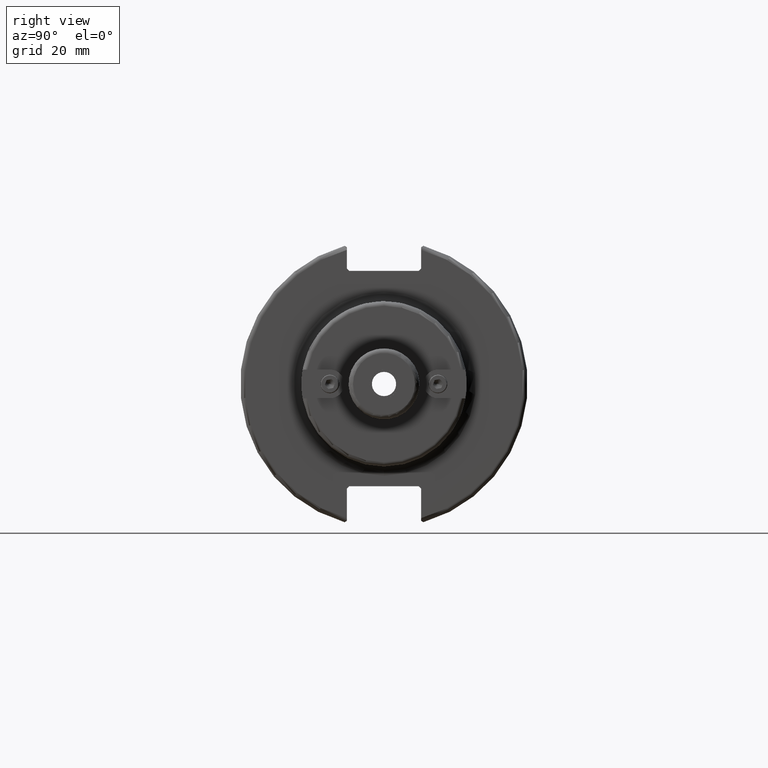
[diagram: clean part render]
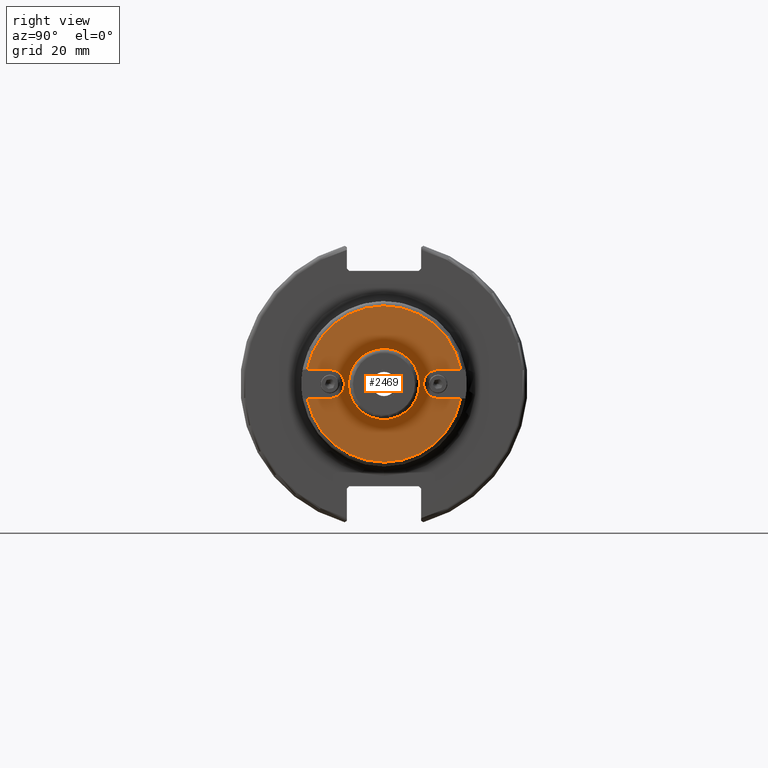
[diagram: same view with one face highlighted and labeled with its STEP entity id]
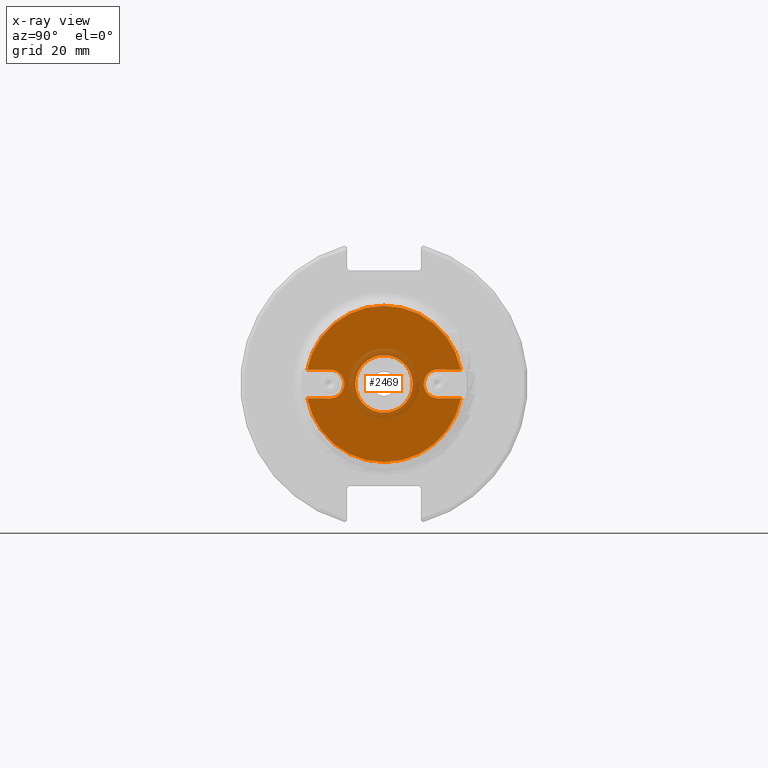
[diagram: x-ray of the same camera — body ghosted, the highlighted face saturated]
A machine part, right view. The second image highlights one B-rep face of the part: STEP entity #2469.
The next image is the same camera in x-ray: the body ghosted, the highlighted face saturated — about 9% of this face is hidden behind the body in this view.
In plain terms, the highlighted planar face has unit normal (1, 0, 0).
Its self-contained STEP definition (entity closure, byte-faithful):
#173=FACE_BOUND('',#494,.T.);
#198=CIRCLE('',#2708,3.175);
#204=CIRCLE('',#2717,17.265);
#205=CIRCLE('',#2719,17.265);
#209=CIRCLE('',#2729,3.175);
#220=CIRCLE('',#2746,6.35);
#341=FACE_OUTER_BOUND('',#493,.T.);
#493=EDGE_LOOP('',(#1735,#1736,#1737,#1738,#1739,#1740,#1741,#1742));
#494=EDGE_LOOP('',(#1743));
#639=LINE('',#3791,#809);
#648=LINE('',#3832,#818);
#654=LINE('',#3885,#824);
#659=LINE('',#3896,#829);
#809=VECTOR('',#3005,10.);
#818=VECTOR('',#3036,10.);
#824=VECTOR('',#3072,10.);
#829=VECTOR('',#3083,10.);
#1013=VERTEX_POINT('',#3778);
#1015=VERTEX_POINT('',#3790);
#1024=VERTEX_POINT('',#3815);
#1026=VERTEX_POINT('',#3820);
#1033=VERTEX_POINT('',#3849);
#1034=VERTEX_POINT('',#3862);
#1038=VERTEX_POINT('',#3884);
#1041=VERTEX_POINT('',#3894);
#1055=VERTEX_POINT('',#4003);
#1260=EDGE_CURVE('',#1015,#1013,#639,.T.);
#1272=EDGE_CURVE('',#1024,#1015,#198,.T.);
#1276=EDGE_CURVE('',#1026,#1024,#648,.T.);
#1285=EDGE_CURVE('',#1026,#1033,#204,.T.);
#1288=EDGE_CURVE('',#1034,#1013,#205,.T.);
#1293=EDGE_CURVE('',#1038,#1033,#654,.T.);
#1299=EDGE_CURVE('',#1034,#1041,#659,.T.);
#1300=EDGE_CURVE('',#1041,#1038,#209,.T.);
#1319=EDGE_CURVE('',#1055,#1055,#220,.T.);
#1735=ORIENTED_EDGE('',*,*,#1260,.T.);
#1736=ORIENTED_EDGE('',*,*,#1288,.F.);
#1737=ORIENTED_EDGE('',*,*,#1299,.T.);
#1738=ORIENTED_EDGE('',*,*,#1300,.T.);
#1739=ORIENTED_EDGE('',*,*,#1293,.T.);
#1740=ORIENTED_EDGE('',*,*,#1285,.F.);
#1741=ORIENTED_EDGE('',*,*,#1276,.T.);
#1742=ORIENTED_EDGE('',*,*,#1272,.T.);
#1743=ORIENTED_EDGE('',*,*,#1319,.F.);
#2382=PLANE('',#2747);
#2469=ADVANCED_FACE('',(#341,#173),#2382,.T.);
#2708=AXIS2_PLACEMENT_3D('',#3816,#3030,#3031);
#2717=AXIS2_PLACEMENT_3D('',#3850,#3054,#3055);
#2719=AXIS2_PLACEMENT_3D('',#3873,#3058,#3059);
#2729=AXIS2_PLACEMENT_3D('',#3898,#3086,#3087);
#2746=AXIS2_PLACEMENT_3D('',#4005,#3124,#3125);
#2747=AXIS2_PLACEMENT_3D('',#4006,#3126,#3127);
#3005=DIRECTION('',(0.,-1.,1.76228506773096E-16));
#3030=DIRECTION('center_axis',(-1.,0.,0.));
#3031=DIRECTION('ref_axis',(0.,-1.22464679914735E-16,-1.));
#3036=DIRECTION('',(0.,1.,-6.87008530563742E-17));
#3054=DIRECTION('center_axis',(-1.,0.,0.));
#3055=DIRECTION('ref_axis',(0.,-1.,1.83697019872103E-16));
#3058=DIRECTION('center_axis',(-1.,0.,0.));
#3059=DIRECTION('ref_axis',(0.,-1.,1.83697019872103E-16));
#3072=DIRECTION('',(0.,1.,-5.37638268583611E-17));
#3083=DIRECTION('',(0.,-1.,-5.37638268583611E-17));
#3086=DIRECTION('center_axis',(-1.,0.,0.));
#3087=DIRECTION('ref_axis',(0.,0.,1.));
#3124=DIRECTION('center_axis',(1.,0.,0.));
#3125=DIRECTION('ref_axis',(0.,0.,-1.));
#3126=DIRECTION('center_axis',(1.,0.,0.));
#3127=DIRECTION('ref_axis',(0.,0.,-1.));
#3778=CARTESIAN_POINT('',(38.1,-16.97055096336,-3.175));
#3790=CARTESIAN_POINT('',(38.1,-11.94,-3.175));
#3791=CARTESIAN_POINT('',(38.1,-2.795,-3.175));
#3815=CARTESIAN_POINT('',(38.1,-11.94,3.175));
#3816=CARTESIAN_POINT('Origin',(38.1,-11.94,1.46222827818194E-15));
#3820=CARTESIAN_POINT('',(38.1,-16.97055096336,3.175));
#3832=CARTESIAN_POINT('',(38.1,-7.9575,3.175));
#3849=CARTESIAN_POINT('',(38.1,16.97055096336,3.175));
#3850=CARTESIAN_POINT('Origin',(38.1,0.,0.));
#3862=CARTESIAN_POINT('',(38.1,16.97055096336,-3.175));
#3873=CARTESIAN_POINT('Origin',(38.1,0.,0.));
#3884=CARTESIAN_POINT('',(38.1,11.94,3.175));
#3885=CARTESIAN_POINT('',(38.1,9.145,3.175));
#3894=CARTESIAN_POINT('',(38.1,11.94,-3.175));
#3896=CARTESIAN_POINT('',(38.1,14.3075,-3.175));
#3898=CARTESIAN_POINT('Origin',(38.1,11.94,0.));
#4003=CARTESIAN_POINT('',(38.1,-6.35,-7.77650717458569E-16));
#4005=CARTESIAN_POINT('Origin',(38.1,0.,0.));
#4006=CARTESIAN_POINT('Origin',(38.1,6.35,0.));